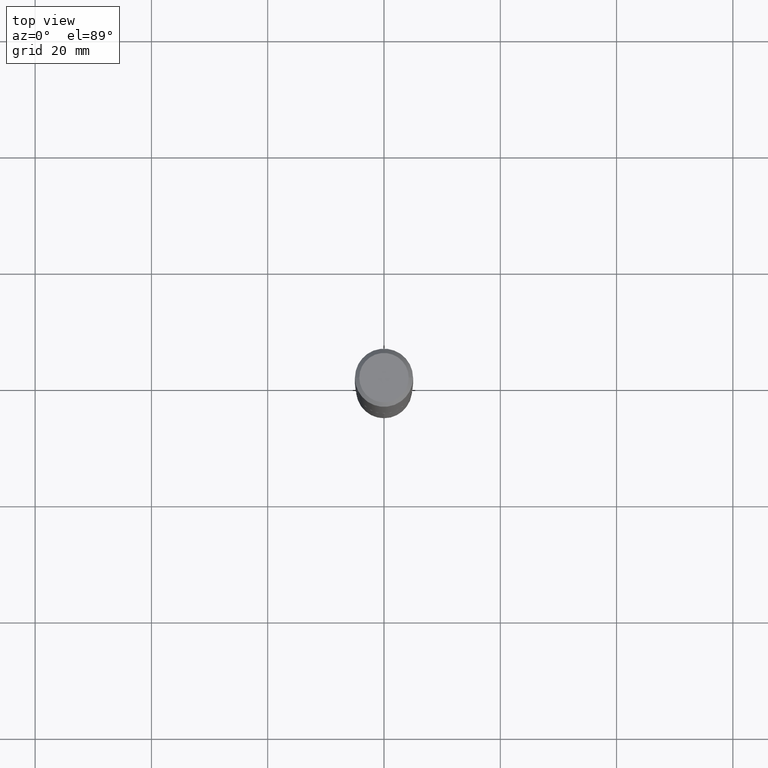
[diagram: clean part render]
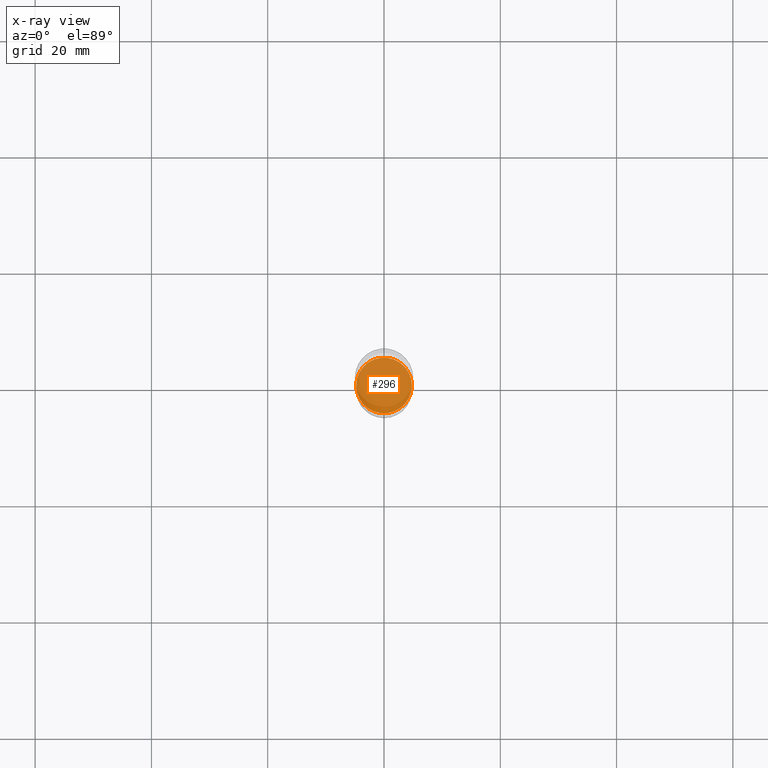
[diagram: x-ray — body ghosted, one internal face saturated and labeled with its STEP entity id]
A machine part, top view, then the same camera in x-ray: the body is ghosted and one INTERNAL B-rep face — a face not visible from any outside direction — is saturated and labeled: STEP entity #296.
In plain terms, the highlighted planar face has unit normal (-0, 0, 1).
Its self-contained STEP definition (entity closure, byte-faithful):
#7 = VERTEX_POINT ( 'NONE', #200 ) ;
#17 = ORIENTED_EDGE ( 'NONE', *, *, #341, .F. ) ;
#58 = DIRECTION ( 'NONE',  ( -2.445468806185136597E-29, 3.491481338843145583E-15, 1.000000000000000000 ) ) ;
#94 = CIRCLE ( 'NONE', #468, 0.1884999999999999731 ) ;
#101 = CARTESIAN_POINT ( 'NONE',  ( 7.510768344436409201E-29, -1.072338663598895144E-14, -3.071299999999999475 ) ) ;
#102 = EDGE_CURVE ( 'NONE', #336, #7, #94, .T. ) ;
#153 = ORIENTED_EDGE ( 'NONE', *, *, #102, .F. ) ;
#158 = EDGE_LOOP ( 'NONE', ( #17, #153 ) ) ;
#179 = DIRECTION ( 'NONE',  ( 1.000000000000000000, -6.982962677686269866E-15, 0.000000000000000000 ) ) ;
#200 = CARTESIAN_POINT ( 'NONE',  ( 0.1884999999999999731, -1.203967510073281246E-14, -3.071299999999999475 ) ) ;
#201 = DIRECTION ( 'NONE',  ( 1.000000000000000000, -6.982962677686269866E-15, 0.000000000000000000 ) ) ;
#204 = AXIS2_PLACEMENT_3D ( 'NONE', #101, #441, #377 ) ;
#296 = ADVANCED_FACE ( 'NONE', ( #308 ), #448, .F. ) ;
#304 = CIRCLE ( 'NONE', #415, 0.1884999999999999731 ) ;
#308 = FACE_OUTER_BOUND ( 'NONE', #158, .T. ) ;
#323 = CARTESIAN_POINT ( 'NONE',  ( 7.510768344436409201E-29, -1.072338663598895144E-14, -3.071299999999999475 ) ) ;
#336 = VERTEX_POINT ( 'NONE', #444 ) ;
#341 = EDGE_CURVE ( 'NONE', #7, #336, #304, .T. ) ;
#377 = DIRECTION ( 'NONE',  ( 1.000000000000000000, -6.982962677686265922E-15, 4.876176775795935793E-29 ) ) ;
#389 = DIRECTION ( 'NONE',  ( -2.445468806185136597E-29, 3.491481338843145583E-15, 1.000000000000000000 ) ) ;
#408 = CARTESIAN_POINT ( 'NONE',  ( 7.510768344436409201E-29, -1.072338663598895144E-14, -3.071299999999999475 ) ) ;
#415 = AXIS2_PLACEMENT_3D ( 'NONE', #408, #58, #201 ) ;
#441 = DIRECTION ( 'NONE',  ( -2.438088387897960049E-29, 3.491481338843145188E-15, 1.000000000000000000 ) ) ;
#444 = CARTESIAN_POINT ( 'NONE',  ( -0.1884999999999999731, -9.381364351907051382E-15, -3.071299999999999475 ) ) ;
#448 = PLANE ( 'NONE',  #204 ) ;
#468 = AXIS2_PLACEMENT_3D ( 'NONE', #323, #389, #179 ) ;